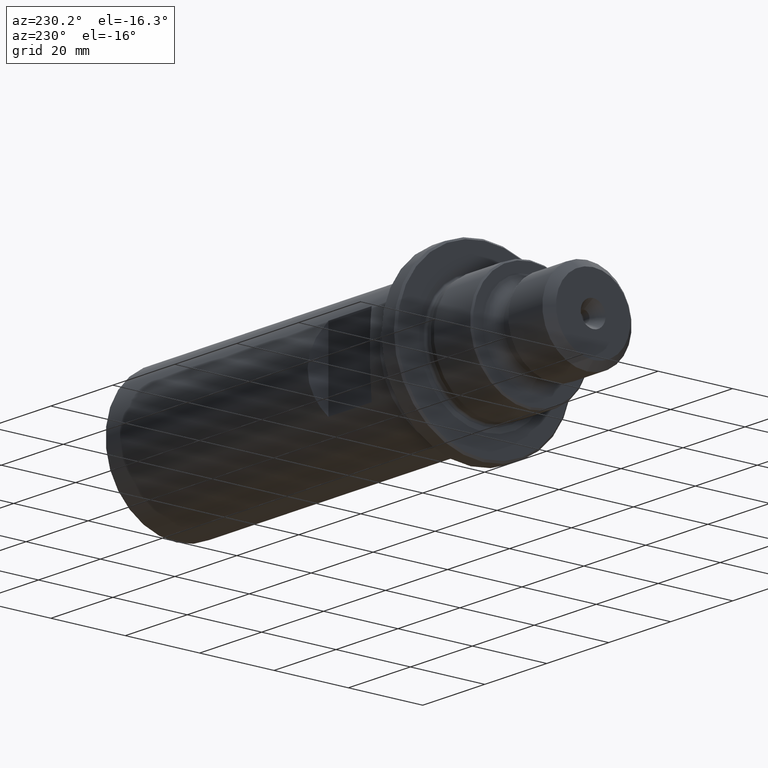
[diagram: clean part render]
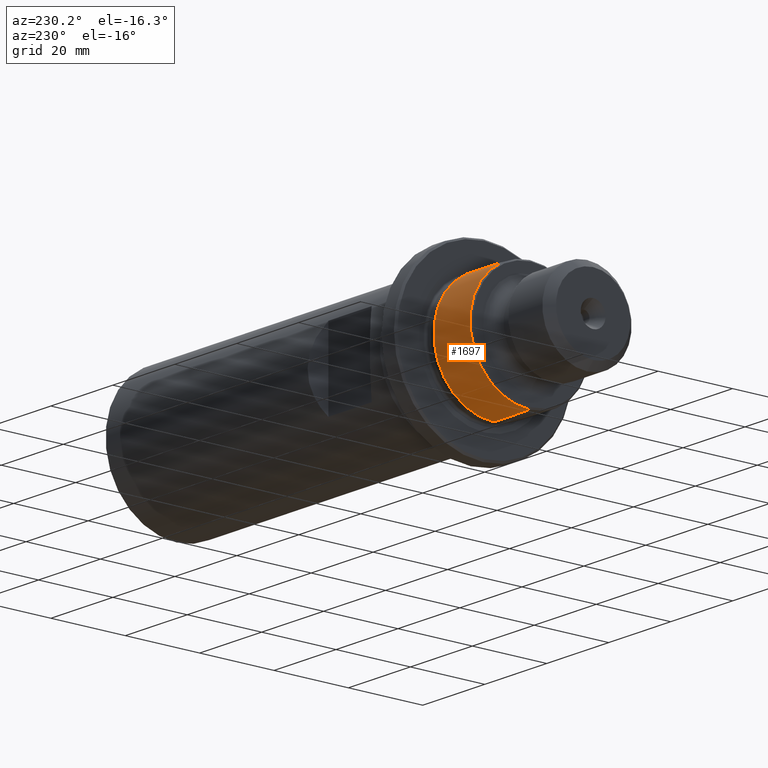
[diagram: same view with one face highlighted and labeled with its STEP entity id]
A machine part, auxiliary view. The second image highlights one B-rep face of the part: STEP entity #1697.
In plain terms, the highlighted cylindrical surface (partial cylindrical patch) has radius 16.1 mm, axis along (1, -0, -0).
Its self-contained STEP definition (entity closure, byte-faithful):
#60 = DIRECTION ( 'NONE',  ( 0.0000000000000000000, 0.0000000000000000000, -1.000000000000000000 ) ) ;
#61 = DIRECTION ( 'NONE',  ( -1.000000000000000000, 0.0000000000000000000, 0.0000000000000000000 ) ) ;
#62 = CARTESIAN_POINT ( 'NONE',  ( -114.5999999999999800, 0.0000000000000000000, 0.0000000000000000000 ) ) ;
#142 = CARTESIAN_POINT ( 'NONE',  ( -102.8732050807569500, 0.0000000000000000000, 16.10000000000000100 ) ) ;
#158 = CARTESIAN_POINT ( 'NONE',  ( -102.8732050807569500, 1.971681346627238900E-015, -16.10000000000000100 ) ) ;
#193 = CARTESIAN_POINT ( 'NONE',  ( -114.5999999999999800, 0.0000000000000000000, -16.10000000000000100 ) ) ;
#201 = CARTESIAN_POINT ( 'NONE',  ( -114.5999999999999800, 1.971681346627238900E-015, 16.10000000000000100 ) ) ;
#324 = EDGE_CURVE ( 'NONE', #1076, #1094, #1445, .T. ) ;
#325 = EDGE_CURVE ( 'NONE', #1097, #1094, #1447, .T. ) ;
#326 = EDGE_CURVE ( 'NONE', #1077, #1097, #1444, .T. ) ;
#483 = DIRECTION ( 'NONE',  ( 0.0000000000000000000, 0.0000000000000000000, 1.000000000000000000 ) ) ;
#498 = DIRECTION ( 'NONE',  ( 1.000000000000000000, -0.0000000000000000000, -0.0000000000000000000 ) ) ;
#500 = CARTESIAN_POINT ( 'NONE',  ( -102.8732050807569500, 0.0000000000000000000, 0.0000000000000000000 ) ) ;
#502 = CARTESIAN_POINT ( 'NONE',  ( -135.0000000000000000, 0.0000000000000000000, -16.10000000000000100 ) ) ;
#508 = DIRECTION ( 'NONE',  ( 1.000000000000000000, -0.0000000000000000000, -0.0000000000000000000 ) ) ;
#525 = CARTESIAN_POINT ( 'NONE',  ( -135.0000000000000000, 1.971681346627238900E-015, 16.10000000000000100 ) ) ;
#548 = DIRECTION ( 'NONE',  ( 1.000000000000000000, -0.0000000000000000000, -0.0000000000000000000 ) ) ;
#731 = AXIS2_PLACEMENT_3D ( 'NONE', #2161, #2158, #2162 ) ;
#782 = AXIS2_PLACEMENT_3D ( 'NONE', #62, #61, #60 ) ;
#950 = EDGE_LOOP ( 'NONE', ( #1153, #1154, #1155, #1156 ) ) ;
#1076 = VERTEX_POINT ( 'NONE', #201 ) ;
#1077 = VERTEX_POINT ( 'NONE', #193 ) ;
#1094 = VERTEX_POINT ( 'NONE', #142 ) ;
#1097 = VERTEX_POINT ( 'NONE', #158 ) ;
#1153 = ORIENTED_EDGE ( 'NONE', *, *, #1420, .F. ) ;
#1154 = ORIENTED_EDGE ( 'NONE', *, *, #324, .T. ) ;
#1155 = ORIENTED_EDGE ( 'NONE', *, *, #325, .F. ) ;
#1156 = ORIENTED_EDGE ( 'NONE', *, *, #326, .F. ) ;
#1340 = AXIS2_PLACEMENT_3D ( 'NONE', #500, #498, #483 ) ;
#1420 = EDGE_CURVE ( 'NONE', #1076, #1077, #2055, .T. ) ;
#1440 = VECTOR ( 'NONE', #508, 1000.000000000000000 ) ;
#1443 = VECTOR ( 'NONE', #548, 1000.000000000000000 ) ;
#1444 = LINE ( 'NONE', #502, #1440 ) ;
#1445 = LINE ( 'NONE', #525, #1443 ) ;
#1447 = CIRCLE ( 'NONE', #1340, 16.10000000000000100 ) ;
#1697 = ADVANCED_FACE ( 'NONE', ( #1930 ), #1929, .T. ) ;
#1929 = CYLINDRICAL_SURFACE ( 'NONE', #731, 16.10000000000000100 ) ;
#1930 = FACE_OUTER_BOUND ( 'NONE', #950, .T. ) ;
#2055 = CIRCLE ( 'NONE', #782, 16.10000000000000100 ) ;
#2158 = DIRECTION ( 'NONE',  ( 1.000000000000000000, -0.0000000000000000000, -0.0000000000000000000 ) ) ;
#2161 = CARTESIAN_POINT ( 'NONE',  ( -135.0000000000000000, 0.0000000000000000000, 0.0000000000000000000 ) ) ;
#2162 = DIRECTION ( 'NONE',  ( 0.0000000000000000000, 0.0000000000000000000, -1.000000000000000000 ) ) ;